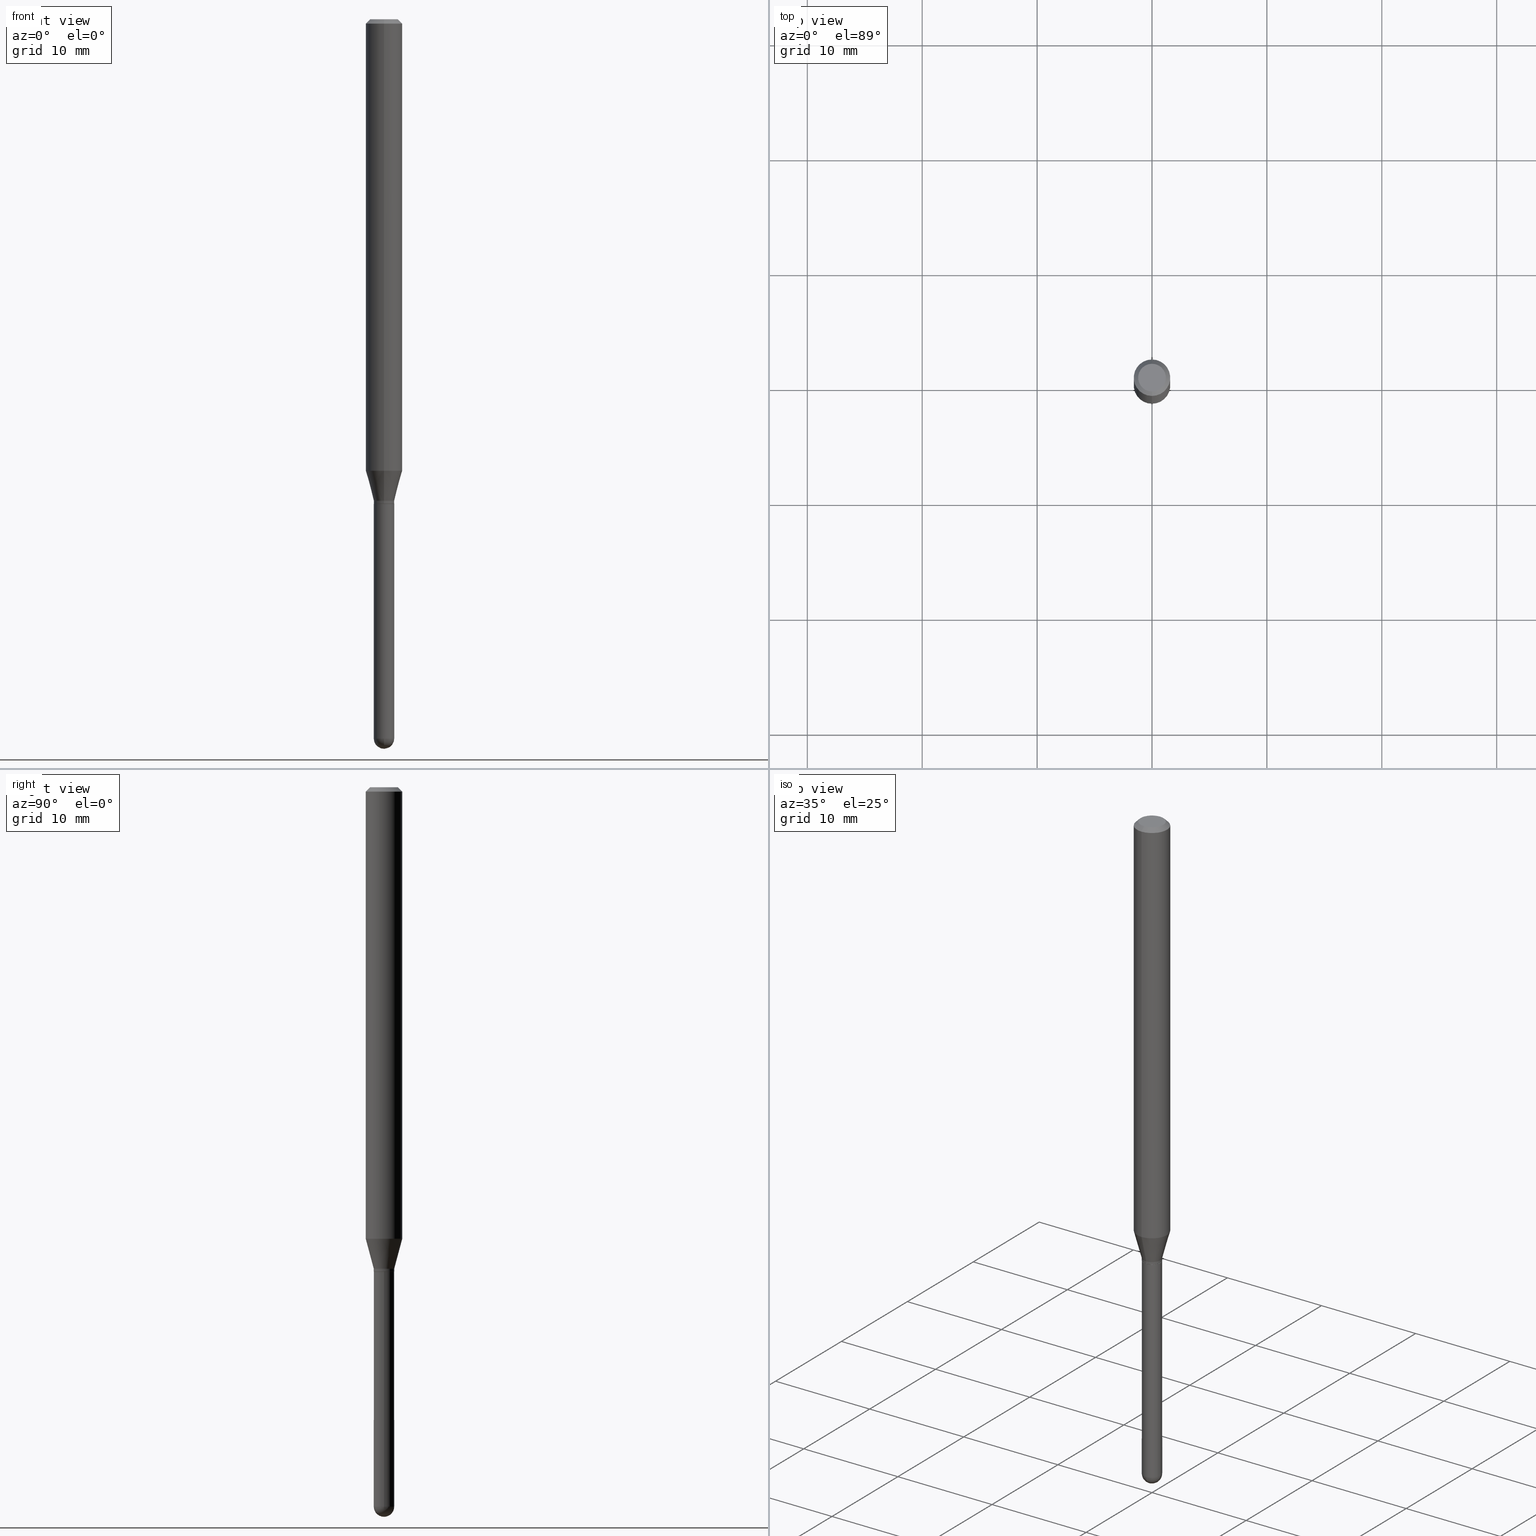
[diagram: canonical four-view strip — front | top / right | iso, engineering-drawing reading convention]
A machine part, canonical four-view strip (front | top / right | iso — engineering-drawing reading convention). The complete STEP part file that produces these views, byte-faithful:
ISO-10303-21;
HEADER;
FILE_DESCRIPTION (( 'STEP AP203' ),
    '1' );
FILE_NAME ('02788.STEP',
    '2024-03-07T21:32:30',
    ( '' ),
    ( '' ),
    'SwSTEP 2.0',
    'SolidWorks 2023',
    '' );
FILE_SCHEMA (( 'CONFIG_CONTROL_DESIGN' ));
ENDSEC;

DATA;
#1 = VECTOR ( 'NONE', #497, 39.37007874015748143 ) ;
#2 = CC_DESIGN_PERSON_AND_ORGANIZATION_ASSIGNMENT ( #27, #495, ( #453 ) ) ;
#3 = EDGE_CURVE ( 'NONE', #107, #251, #336, .T. ) ;
#4 = VERTEX_POINT ( 'NONE', #54 ) ;
#5 = CARTESIAN_POINT ( 'NONE',  ( 3.783948471057598170E-29, -5.402742038218876257E-15, -1.547368602791855619 ) ) ;
#6 = ORIENTED_EDGE ( 'NONE', *, *, #233, .F. ) ;
#7 = APPROVAL_ROLE ( '' ) ;
#8 = ORIENTED_EDGE ( 'NONE', *, *, #281, .T. ) ;
#9 = AXIS2_PLACEMENT_3D ( 'NONE', #379, #141, #174 ) ;
#10 = AXIS2_PLACEMENT_3D ( 'NONE', #306, #389, #198 ) ;
#11 = VERTEX_POINT ( 'NONE', #439 ) ;
#12 = DIRECTION ( 'NONE',  ( -6.982962677686265922E-15, -1.000000000000000000, 3.491567573796523366E-15 ) ) ;
#13 = FACE_OUTER_BOUND ( 'NONE', #120, .T. ) ;
#14 = SPHERICAL_SURFACE ( 'NONE', #315, 0.03499999999999974659 ) ;
#15 = DIRECTION ( 'NONE',  ( -2.445408588639041950E-29, 3.491567573796523366E-15, 1.000000000000000000 ) ) ;
#16 = DIRECTION ( 'NONE',  ( 6.982962677686265922E-15, 1.000000000000000000, 0.000000000000000000 ) ) ;
#17 = ADVANCED_FACE ( 'NONE', ( #88 ), #203, .T. ) ;
#18 = DIRECTION ( 'NONE',  ( -6.982962677686265922E-15, -1.000000000000000000, 3.491567573796522971E-15 ) ) ;
#19 = AXIS2_PLACEMENT_3D ( 'NONE', #273, #474, #188 ) ;
#20 = LOCAL_TIME ( 16, 32, 30.00000000000000000, #372 ) ;
#21 = LINE ( 'NONE', #366, #102 ) ;
#22 = CARTESIAN_POINT ( 'NONE',  ( 4.059378257140809872E-29, -5.796002172502230420E-15, -1.660000000000000364 ) ) ;
#23 = DIRECTION ( 'NONE',  ( 1.000000000000000000, -6.982962677686276966E-15, 0.000000000000000000 ) ) ;
#24 = EDGE_LOOP ( 'NONE', ( #301, #69 ) ) ;
#25 = APPROVAL_ROLE ( '' ) ;
#26 = EDGE_LOOP ( 'NONE', ( #146, #30, #195, #37 ) ) ;
#27 = PERSON_AND_ORGANIZATION ( #276, #290 ) ;
#28 = VECTOR ( 'NONE', #150, 39.37007874015748143 ) ;
#29 = APPROVAL_PERSON_ORGANIZATION ( #427, #274, #455 ) ;
#30 = ORIENTED_EDGE ( 'NONE', *, *, #3, .F. ) ;
#31 = CARTESIAN_POINT ( 'NONE',  ( 4.059478218267327378E-29, -5.795859022479622985E-15, -1.660000000000000364 ) ) ;
#32 = DIRECTION ( 'NONE',  ( -4.937700262164674260E-15, -0.7071067811865632269, 0.7071067811865319186 ) ) ;
#33 = DIRECTION ( 'NONE',  ( 1.000000000000000000, -6.982962677686276966E-15, 0.000000000000000000 ) ) ;
#34 = DIRECTION ( 'NONE',  ( -6.982962677686265922E-15, -1.000000000000000000, 3.483106191921935554E-15 ) ) ;
#35 = AXIS2_PLACEMENT_3D ( 'NONE', #312, #208, #356 ) ;
#36 = DIRECTION ( 'NONE',  ( -2.445468806185136597E-29, 3.491481338843145583E-15, 1.000000000000000000 ) ) ;
#37 = ORIENTED_EDGE ( 'NONE', *, *, #295, .T. ) ;
#38 = EDGE_CURVE ( 'NONE', #105, #400, #440, .T. ) ;
#39 = VERTEX_POINT ( 'NONE', #499 ) ;
#40 = CIRCLE ( 'NONE', #424, 0.06250000000000000000 ) ;
#41 = AXIS2_PLACEMENT_3D ( 'NONE', #357, #449, #89 ) ;
#42 = VERTEX_POINT ( 'NONE', #134 ) ;
#43 = CARTESIAN_POINT ( 'NONE',  ( 2.486899575160741866E-16, 0.03499999999999400813, -1.659500000000000419 ) ) ;
#44 = EDGE_CURVE ( 'NONE', #393, #193, #245, .T. ) ;
#45 = VERTEX_POINT ( 'NONE', #488 ) ;
#46 = VERTEX_POINT ( 'NONE', #491 ) ;
#47 = LINE ( 'NONE', #317, #136 ) ;
#48 = EDGE_LOOP ( 'NONE', ( #201, #229, #415, #343 ) ) ;
#49 =( NAMED_UNIT ( * ) PLANE_ANGLE_UNIT ( ) SI_UNIT ( $, .RADIAN. ) );
#50 = CARTESIAN_POINT ( 'NONE',  ( 0.000000000000000000, 0.000000000000000000, 0.000000000000000000 ) ) ;
#51 = CARTESIAN_POINT ( 'NONE',  ( -2.444036937189784522E-16, -0.03500000000000568628, -1.649999999999999689 ) ) ;
#52 = VECTOR ( 'NONE', #462, 39.37007874015748143 ) ;
#53 = PLANE ( 'NONE',  #510 ) ;
#54 = CARTESIAN_POINT ( 'NONE',  ( 4.440892098501000871E-16, 0.06249999999999455991, -1.547368602791856063 ) ) ;
#55 = APPLICATION_PROTOCOL_DEFINITION ( 'international standard', 'config_control_design', 1994, #448 ) ;
#56 = ADVANCED_FACE ( 'NONE', ( #370 ), #156, .T. ) ;
#57 = ORIENTED_EDGE ( 'NONE', *, *, #492, .F. ) ;
#58 = DATE_AND_TIME ( #90, #375 ) ;
#59 = CARTESIAN_POINT ( 'NONE',  ( 3.668112882958643079E-31, -5.237351360694899581E-17, -0.01500000000000032904 ) ) ;
#60 = CARTESIAN_POINT ( 'NONE',  ( 0.000000000000000000, 0.000000000000000000, 0.000000000000000000 ) ) ;
#61 = EDGE_CURVE ( 'NONE', #400, #187, #394, .T. ) ;
#62 = DIRECTION ( 'NONE',  ( -2.445408588639041950E-29, 3.491567573796523366E-15, 1.000000000000000000 ) ) ;
#63 = DIRECTION ( 'NONE',  ( -2.445408588639041950E-29, 3.491567573796523366E-15, 1.000000000000000000 ) ) ;
#64 = DIRECTION ( 'NONE',  ( -2.445408588639041950E-29, 3.491567573796523366E-15, 1.000000000000000000 ) ) ;
#65 = VECTOR ( 'NONE', #334, 39.37007874015748143 ) ;
#66 = DIRECTION ( 'NONE',  ( 1.000000000000000000, -6.982962677686265922E-15, 4.876176775795936353E-29 ) ) ;
#67 = DIRECTION ( 'NONE',  ( -6.982962677686265133E-15, -1.000000000000000000, 3.491567573796522971E-15 ) ) ;
#68 = DIRECTION ( 'NONE',  ( -2.445408588639041950E-29, 3.491567573796523366E-15, 1.000000000000000000 ) ) ;
#69 = ORIENTED_EDGE ( 'NONE', *, *, #417, .F. ) ;
#70 = CYLINDRICAL_SURFACE ( 'NONE', #262, 0.03500000000000000333 ) ;
#71 = FACE_OUTER_BOUND ( 'NONE', #26, .T. ) ;
#72 = CIRCLE ( 'NONE', #180, 0.03500000000000000333 ) ;
#73 = VECTOR ( 'NONE', #413, 39.37007874015748143 ) ;
#74 = FACE_OUTER_BOUND ( 'NONE', #423, .T. ) ;
#75 = CARTESIAN_POINT ( 'NONE',  ( -4.364351673553916201E-16, -0.06250000000000000000, 2.182229733622826857E-16 ) ) ;
#76 = DIRECTION ( 'NONE',  ( 6.982962677686265922E-15, 1.000000000000000000, -3.491567573796523366E-15 ) ) ;
#77 = ORIENTED_EDGE ( 'NONE', *, *, #457, .F. ) ;
#78 = DIRECTION ( 'NONE',  ( 2.445408588639041389E-29, -3.491567573796523366E-15, -1.000000000000000000 ) ) ;
#79 = CYLINDRICAL_SURFACE ( 'NONE', #391, 0.03499999999999992700 ) ;
#80 = AXIS2_PLACEMENT_3D ( 'NONE', #5, #194, #478 ) ;
#81 = LINE ( 'NONE', #480, #200 ) ;
#82 = ORIENTED_EDGE ( 'NONE', *, *, #380, .F. ) ;
#83 = ORIENTED_EDGE ( 'NONE', *, *, #473, .F. ) ;
#84 = DIRECTION ( 'NONE',  ( -6.982962677686266711E-15, -1.000000000000000000, 3.491567573796523760E-15 ) ) ;
#85 = ADVANCED_FACE ( 'NONE', ( #236 ), #53, .F. ) ;
#86 = AXIS2_PLACEMENT_3D ( 'NONE', #319, #133, #291 ) ;
#87 = PLANE ( 'NONE',  #86 ) ;
#88 = FACE_OUTER_BOUND ( 'NONE', #346, .T. ) ;
#89 = DIRECTION ( 'NONE',  ( -6.982962677686265133E-15, -1.000000000000000000, 0.000000000000000000 ) ) ;
#90 = CALENDAR_DATE ( 2024, 7, 3 ) ;
#91 = EDGE_CURVE ( 'NONE', #451, #45, #500, .T. ) ;
#92 = CARTESIAN_POINT ( 'NONE',  ( 4.364351673553919652E-16, 0.06249999999999995143, -0.01500000000000054588 ) ) ;
#93 = APPROVAL_DATE_TIME ( #283, #274 ) ;
#94 = DIRECTION ( 'NONE',  ( -6.982962677686266711E-15, -1.000000000000000000, 0.000000000000000000 ) ) ;
#95 = DIRECTION ( 'NONE',  ( -2.445468806185136597E-29, 3.491481338843145583E-15, 1.000000000000000000 ) ) ;
#96 = CARTESIAN_POINT ( 'NONE',  ( 4.059378257140809872E-29, -5.796002172502230420E-15, -1.660000000000000364 ) ) ;
#97 = AXIS2_PLACEMENT_3D ( 'NONE', #464, #95, #293 ) ;
#98 = DIRECTION ( 'NONE',  ( -2.445468806185136877E-29, 3.491481338843145188E-15, 1.000000000000000000 ) ) ;
#99 = LINE ( 'NONE', #378, #289 ) ;
#100 = EDGE_LOOP ( 'NONE', ( #284, #275, #6, #123 ) ) ;
#101 = EDGE_CURVE ( 'NONE', #209, #39, #326, .T. ) ;
#102 = VECTOR ( 'NONE', #98, 39.37007874015748143 ) ;
#103 = CC_DESIGN_APPROVAL ( #167, ( #414 ) ) ;
#104 = FACE_OUTER_BOUND ( 'NONE', #435, .T. ) ;
#105 = VERTEX_POINT ( 'NONE', #469 ) ;
#106 = CARTESIAN_POINT ( 'NONE',  ( 4.034924171254418404E-29, -5.761086496764261128E-15, -1.649999999999999689 ) ) ;
#107 = VERTEX_POINT ( 'NONE', #267 ) ;
#108 = EDGE_CURVE ( 'NONE', #400, #105, #135, .T. ) ;
#109 = EDGE_LOOP ( 'NONE', ( #392, #387 ) ) ;
#110 = PERSON_AND_ORGANIZATION ( #276, #290 ) ;
#111 = AXIS2_PLACEMENT_3D ( 'NONE', #221, #297, #34 ) ;
#112 = APPROVAL_PERSON_ORGANIZATION ( #214, #167, #7 ) ;
#113 = CARTESIAN_POINT ( 'NONE',  ( 3.316907271900976096E-16, 0.04749999999999999362, -3.299208855312719678E-16 ) ) ;
#114 = PERSON_AND_ORGANIZATION_ROLE ( 'creator' ) ;
#115 = ORIENTED_EDGE ( 'NONE', *, *, #196, .F. ) ;
#116 = ORIENTED_EDGE ( 'NONE', *, *, #225, .T. ) ;
#117 = AXIS2_PLACEMENT_3D ( 'NONE', #409, #15, #325 ) ;
#118 = AXIS2_PLACEMENT_3D ( 'NONE', #213, #494, #84 ) ;
#119 = AXIS2_PLACEMENT_3D ( 'NONE', #252, #64, #67 ) ;
#120 = EDGE_LOOP ( 'NONE', ( #300, #485, #487, #77 ) ) ;
#121 = ORIENTED_EDGE ( 'NONE', *, *, #298, .T. ) ;
#122 = ADVANCED_FACE ( 'NONE', ( #74 ), #433, .F. ) ;
#123 = ORIENTED_EDGE ( 'NONE', *, *, #101, .F. ) ;
#124 = CONICAL_SURFACE ( 'NONE', #190, 0.03450000000000000289, 0.7853981633974739252 ) ;
#125 = DIRECTION ( 'NONE',  ( -2.445408588639042230E-29, 3.491567573796523366E-15, 1.000000000000000000 ) ) ;
#126 = CARTESIAN_POINT ( 'NONE',  ( 2.469136006766751179E-16, 0.03449999999999420197, -1.660000000000000364 ) ) ;
#127 = LINE ( 'NONE', #92, #73 ) ;
#128 = PERSON_AND_ORGANIZATION ( #276, #290 ) ;
#129 = DIRECTION ( 'NONE',  ( -2.445468806185136597E-29, 3.491481338843145583E-15, 1.000000000000000000 ) ) ;
#130 = DIRECTION ( 'NONE',  ( -2.445408588639041950E-29, 3.491567573796523366E-15, 1.000000000000000000 ) ) ;
#131 = APPROVAL_STATUS ( 'not_yet_approved' ) ;
#132 = CARTESIAN_POINT ( 'NONE',  ( 0.03500000000000000333, -2.444036937190193250E-16, 1.706661871528577808E-30 ) ) ;
#133 = DIRECTION ( 'NONE',  ( 2.438088387897960049E-29, -3.491481338843145188E-15, -1.000000000000000000 ) ) ;
#134 = CARTESIAN_POINT ( 'NONE',  ( -4.364351673553912750E-16, -0.06250000000000005551, -0.01500000000000011047 ) ) ;
#135 = CIRCLE ( 'NONE', #19, 0.03499999999999992700 ) ;
#136 = VECTOR ( 'NONE', #490, 39.37007874015748143 ) ;
#137 = CYLINDRICAL_SURFACE ( 'NONE', #119, 0.03499999999999992700 ) ;
#138 = EDGE_CURVE ( 'NONE', #507, #209, #72, .T. ) ;
#139 = EDGE_CURVE ( 'NONE', #4, #151, #179, .T. ) ;
#140 = DIRECTION ( 'NONE',  ( -6.982962677686266711E-15, -1.000000000000000000, 3.491567573796523760E-15 ) ) ;
#141 = DIRECTION ( 'NONE',  ( -2.445468806185136597E-29, 3.491481338843145583E-15, 1.000000000000000000 ) ) ;
#142 = CIRCLE ( 'NONE', #222, 0.04749999999999999362 ) ;
#143 = DIRECTION ( 'NONE',  ( 5.024295867788190974E-15, 0.7071067811865681119, 0.7071067811865270336 ) ) ;
#144 = AXIS2_PLACEMENT_3D ( 'NONE', #206, #493, #164 ) ;
#145 = CC_DESIGN_SECURITY_CLASSIFICATION ( #471, ( #453 ) ) ;
#146 = ORIENTED_EDGE ( 'NONE', *, *, #458, .F. ) ;
#147 = MANIFOLD_SOLID_BREP ( 'Body-Move/Copy2[2]', #373 ) ;
#148 = EDGE_LOOP ( 'NONE', ( #83, #279, #340, #303 ) ) ;
#149 = EDGE_CURVE ( 'NONE', #46, #151, #231, .T. ) ;
#150 = DIRECTION ( 'NONE',  ( -1.807323732225332900E-15, -0.2588190451025185745, 0.9659258262890689783 ) ) ;
#151 = VERTEX_POINT ( 'NONE', #322 ) ;
#152 = AXIS2_PLACEMENT_3D ( 'NONE', #420, #338, #257 ) ;
#153 = VECTOR ( 'NONE', #259, 39.37007874015748143 ) ;
#154 = CARTESIAN_POINT ( 'NONE',  ( 6.025087525234234064E-29, -8.610787764045369491E-15, -2.464999999999999858 ) ) ;
#155 = DIRECTION ( 'NONE',  ( -1.000000000000000000, 6.982962677686265922E-15, -4.883557194083112901E-29 ) ) ;
#156 = CYLINDRICAL_SURFACE ( 'NONE', #342, 0.06250000000000000000 ) ;
#157 = CALENDAR_DATE ( 2024, 7, 3 ) ;
#158 = FACE_OUTER_BOUND ( 'NONE', #100, .T. ) ;
#159 = CIRCLE ( 'NONE', #111, 0.06250000000000000000 ) ;
#160 = DIRECTION ( 'NONE',  ( -2.445468806185136597E-29, 3.491481338843145583E-15, 1.000000000000000000 ) ) ;
#161 = SHAPE_DEFINITION_REPRESENTATION ( #172, #186 ) ;
#162 =( CONVERSION_BASED_UNIT ( 'INCH', #402 ) LENGTH_UNIT ( ) NAMED_UNIT ( #398 ) );
#163 = DATE_TIME_ROLE ( 'classification_date' ) ;
#164 = DIRECTION ( 'NONE',  ( -6.982962677686265922E-15, -1.000000000000000000, 3.483106191921935554E-15 ) ) ;
#165 = CARTESIAN_POINT ( 'NONE',  ( -2.486899575159738534E-16, -0.03500000000000848266, -2.464999999999999858 ) ) ;
#166 = ORIENTED_EDGE ( 'NONE', *, *, #457, .T. ) ;
#167 = APPROVAL ( #307, 'UNSPECIFIED' ) ;
#168 = SPHERICAL_SURFACE ( 'NONE', #223, 0.03499999999999974659 ) ;
#169 = CIRCLE ( 'NONE', #470, 0.03499999999999992006 ) ;
#170 = PERSON_AND_ORGANIZATION_ROLE ( 'classification_officer' ) ;
#171 = ADVANCED_FACE ( 'NONE', ( #496 ), #137, .T. ) ;
#172 = PRODUCT_DEFINITION_SHAPE ( 'NONE', 'NONE',  #414 ) ;
#173 = ADVANCED_FACE ( 'NONE', ( #332 ), #479, .T. ) ;
#174 = DIRECTION ( 'NONE',  ( 1.000000000000000000, -6.982962677686248567E-15, 0.000000000000000000 ) ) ;
#175 = CARTESIAN_POINT ( 'NONE',  ( 3.463895836830877531E-16, 0.03499999999999416078, -1.649999999999999689 ) ) ;
#176 = DIRECTION ( 'NONE',  ( -6.982962677686265133E-15, -1.000000000000000000, 0.000000000000000000 ) ) ;
#177 = EDGE_CURVE ( 'NONE', #11, #226, #271, .T. ) ;
#178 = ORIENTED_EDGE ( 'NONE', *, *, #61, .F. ) ;
#179 = CIRCLE ( 'NONE', #80, 0.06250000000000000000 ) ;
#180 = AXIS2_PLACEMENT_3D ( 'NONE', #299, #390, #191 ) ;
#181 = LOCAL_TIME ( 16, 32, 30.00000000000000000, #367 ) ;
#182 = LINE ( 'NONE', #335, #52 ) ;
#183 = EDGE_LOOP ( 'NONE', ( #178, #234, #166, #57 ) ) ;
#184 = CC_DESIGN_PERSON_AND_ORGANIZATION_ASSIGNMENT ( #110, #114, ( #414 ) ) ;
#185 = ORIENTED_EDGE ( 'NONE', *, *, #3, .T. ) ;
#186 = ADVANCED_BREP_SHAPE_REPRESENTATION ( '02788', ( #324, #147, #263 ), #385 ) ;
#187 = VERTEX_POINT ( 'NONE', #175 ) ;
#188 = DIRECTION ( 'NONE',  ( -6.982962677686265133E-15, -1.000000000000000000, 0.000000000000000000 ) ) ;
#189 = EDGE_CURVE ( 'NONE', #151, #4, #40, .T. ) ;
#190 = AXIS2_PLACEMENT_3D ( 'NONE', #249, #63, #176 ) ;
#191 = DIRECTION ( 'NONE',  ( 1.000000000000000000, -6.982962677686248567E-15, 0.000000000000000000 ) ) ;
#192 = PRODUCT_RELATED_PRODUCT_CATEGORY ( 'detail', '', ( #304 ) ) ;
#193 = VERTEX_POINT ( 'NONE', #126 ) ;
#194 = DIRECTION ( 'NONE',  ( -2.445408588639041950E-29, 3.491567573796523366E-15, 1.000000000000000000 ) ) ;
#195 = ORIENTED_EDGE ( 'NONE', *, *, #465, .T. ) ;
#196 = EDGE_CURVE ( 'NONE', #45, #507, #199, .T. ) ;
#197 = ORIENTED_EDGE ( 'NONE', *, *, #351, .F. ) ;
#198 = DIRECTION ( 'NONE',  ( -6.982962677686265133E-15, -1.000000000000000000, 0.000000000000000000 ) ) ;
#199 = CIRCLE ( 'NONE', #35, 0.03500000000000000333 ) ;
#200 = VECTOR ( 'NONE', #272, 39.37007874015748143 ) ;
#201 = ORIENTED_EDGE ( 'NONE', *, *, #281, .F. ) ;
#202 = FACE_OUTER_BOUND ( 'NONE', #368, .T. ) ;
#203 = CYLINDRICAL_SURFACE ( 'NONE', #406, 0.06250000000000000000 ) ;
#204 = CARTESIAN_POINT ( 'NONE',  ( 6.028080607246362204E-29, -8.606501500248354960E-15, -2.464999999999999858 ) ) ;
#205 = FACE_OUTER_BOUND ( 'NONE', #401, .T. ) ;
#206 = CARTESIAN_POINT ( 'NONE',  ( 3.668112882958643079E-31, -5.237351360694899581E-17, -0.01500000000000032904 ) ) ;
#207 = CIRCLE ( 'NONE', #442, 0.03500000000000000333 ) ;
#208 = DIRECTION ( 'NONE',  ( -2.445468806185136597E-29, 3.491481338843145583E-15, 1.000000000000000000 ) ) ;
#209 = VERTEX_POINT ( 'NONE', #165 ) ;
#210 = PERSON_AND_ORGANIZATION ( #276, #290 ) ;
#211 = DIRECTION ( 'NONE',  ( -2.445408588639041950E-29, 3.491567573796523366E-15, 1.000000000000000000 ) ) ;
#212 = DIRECTION ( 'NONE',  ( -6.982962677686266711E-15, -1.000000000000000000, 0.000000000000000000 ) ) ;
#213 = CARTESIAN_POINT ( 'NONE',  ( 8.024433474854594807E-45, -1.145732940051650306E-30, -3.281428515518742632E-16 ) ) ;
#214 = PERSON_AND_ORGANIZATION ( #276, #290 ) ;
#215 = ADVANCED_FACE ( 'NONE', ( #363 ), #87, .F. ) ;
#216 = ORIENTED_EDGE ( 'NONE', *, *, #225, .F. ) ;
#217 = CONICAL_SURFACE ( 'NONE', #395, 0.06250000000000000000, 0.7853981633974483900 ) ;
#218 = CARTESIAN_POINT ( 'NONE',  ( 4.034924171254418404E-29, -5.761086496764261128E-15, -1.649999999999999689 ) ) ;
#219 = FACE_OUTER_BOUND ( 'NONE', #258, .T. ) ;
#220 = ADVANCED_FACE ( 'NONE', ( #202 ), #14, .T. ) ;
#221 = CARTESIAN_POINT ( 'NONE',  ( 3.668112882958643079E-31, -5.237351360694899581E-17, -0.01500000000000032904 ) ) ;
#222 = AXIS2_PLACEMENT_3D ( 'NONE', #467, #504, #140 ) ;
#223 = AXIS2_PLACEMENT_3D ( 'NONE', #292, #355, #16 ) ;
#224 = LINE ( 'NONE', #386, #153 ) ;
#225 = EDGE_CURVE ( 'NONE', #193, #400, #352, .T. ) ;
#226 = VERTEX_POINT ( 'NONE', #503 ) ;
#227 = ADVANCED_FACE ( 'NONE', ( #219 ), #70, .T. ) ;
#228 = ORIENTED_EDGE ( 'NONE', *, *, #362, .T. ) ;
#229 = ORIENTED_EDGE ( 'NONE', *, *, #139, .T. ) ;
#230 = LOCAL_TIME ( 16, 32, 30.00000000000000000, #477 ) ;
#231 = LINE ( 'NONE', #51, #28 ) ;
#232 = ORIENTED_EDGE ( 'NONE', *, *, #351, .T. ) ;
#233 = EDGE_CURVE ( 'NONE', #39, #45, #337, .T. ) ;
#234 = ORIENTED_EDGE ( 'NONE', *, *, #108, .T. ) ;
#235 = APPLICATION_CONTEXT ( 'configuration controlled 3d designs of mechanical parts and assemblies' ) ;
#236 = FACE_OUTER_BOUND ( 'NONE', #24, .T. ) ;
#237 = VECTOR ( 'NONE', #143, 39.37007874015748143 ) ;
#238 = APPROVAL_PERSON_ORGANIZATION ( #210, #468, #25 ) ;
#239 = ORIENTED_EDGE ( 'NONE', *, *, #196, .T. ) ;
#240 = APPROVAL_DATE_TIME ( #58, #468 ) ;
#241 = DATE_TIME_ROLE ( 'creation_date' ) ;
#242 = ORIENTED_EDGE ( 'NONE', *, *, #288, .T. ) ;
#243 = ORIENTED_EDGE ( 'NONE', *, *, #189, .F. ) ;
#244 = CARTESIAN_POINT ( 'NONE',  ( 6.112175474456776861E-29, -8.730846479006371419E-15, -2.499999999999999556 ) ) ;
#245 = CIRCLE ( 'NONE', #405, 0.03450000000000000289 ) ;
#246 = AXIS2_PLACEMENT_3D ( 'NONE', #31, #254, #33 ) ;
#247 = CARTESIAN_POINT ( 'NONE',  ( 2.486899575160344971E-16, 0.03499999999999992700, -1.222048650828780525E-16 ) ) ;
#248 = DATE_AND_TIME ( #277, #436 ) ;
#249 = CARTESIAN_POINT ( 'NONE',  ( 4.059378257140809872E-29, -5.796002172502230420E-15, -1.660000000000000364 ) ) ;
#250 = ADVANCED_FACE ( 'NONE', ( #330 ), #506, .T. ) ;
#251 = VERTEX_POINT ( 'NONE', #408 ) ;
#252 = CARTESIAN_POINT ( 'NONE',  ( 0.000000000000000000, 0.000000000000000000, 0.000000000000000000 ) ) ;
#253 = CIRCLE ( 'NONE', #10, 0.03450000000000000289 ) ;
#254 = DIRECTION ( 'NONE',  ( -2.445468806185136597E-29, 3.491481338843145583E-15, 1.000000000000000000 ) ) ;
#255 = AXIS2_PLACEMENT_3D ( 'NONE', #419, #68, #278 ) ;
#256 = DIRECTION ( 'NONE',  ( 6.982962677686265922E-15, 1.000000000000000000, -3.483106191921935554E-15 ) ) ;
#257 = DIRECTION ( 'NONE',  ( -7.105427357601000281E-15, -1.000000000000000000, 0.000000000000000000 ) ) ;
#258 = EDGE_LOOP ( 'NONE', ( #399, #475, #296, #228, #459 ) ) ;
#259 = DIRECTION ( 'NONE',  ( 1.839019923739603076E-15, 0.2588190451025253469, 0.9659258262890670910 ) ) ;
#260 = EDGE_LOOP ( 'NONE', ( #239, #511, #305, #411, #421 ) ) ;
#261 = DESIGN_CONTEXT ( 'detailed design', #235, 'design' ) ;
#262 = AXIS2_PLACEMENT_3D ( 'NONE', #418, #36, #66 ) ;
#263 = AXIS2_PLACEMENT_3D ( 'NONE', #484, #403, #280 ) ;
#264 = CC_DESIGN_PERSON_AND_ORGANIZATION_ASSIGNMENT ( #369, #383, ( #304 ) ) ;
#265 = ORIENTED_EDGE ( 'NONE', *, *, #44, .T. ) ;
#266 = ADVANCED_FACE ( 'NONE', ( #456 ), #358, .T. ) ;
#267 = CARTESIAN_POINT ( 'NONE',  ( 3.840629472727447874E-16, 0.04749999999999999362, -4.939923113072091241E-16 ) ) ;
#268 = ORIENTED_EDGE ( 'NONE', *, *, #108, .F. ) ;
#269 = ORIENTED_EDGE ( 'NONE', *, *, #38, .F. ) ;
#270 = EDGE_CURVE ( 'NONE', #393, #105, #99, .T. ) ;
#271 = CIRCLE ( 'NONE', #246, 0.03500000000000000333 ) ;
#272 = DIRECTION ( 'NONE',  ( -2.445408588639042230E-29, 3.491567573796523366E-15, 1.000000000000000000 ) ) ;
#273 = CARTESIAN_POINT ( 'NONE',  ( 4.058155552846491195E-29, -5.794256388715332389E-15, -1.659500000000000419 ) ) ;
#274 = APPROVAL ( #430, 'UNSPECIFIED' ) ;
#275 = ORIENTED_EDGE ( 'NONE', *, *, #91, .T. ) ;
#276 = PERSON ( 'UNSPECIFIED', 'UNSPECIFIED', 'UNSPECIFIED', ('UNSPECIFIED'), ('UNSPECIFIED'), ('UNSPECIFIED') ) ;
#277 = CALENDAR_DATE ( 2024, 7, 3 ) ;
#278 = DIRECTION ( 'NONE',  ( -6.982962677686266711E-15, -1.000000000000000000, 0.000000000000000000 ) ) ;
#279 = ORIENTED_EDGE ( 'NONE', *, *, #492, .T. ) ;
#280 = DIRECTION ( 'NONE',  ( 1.000000000000000000, 0.000000000000000000, 0.000000000000000000 ) ) ;
#281 = EDGE_CURVE ( 'NONE', #4, #429, #182, .T. ) ;
#282 = DIRECTION ( 'NONE',  ( 6.982962677686265922E-15, 1.000000000000000000, 0.000000000000000000 ) ) ;
#283 = DATE_AND_TIME ( #157, #20 ) ;
#284 = ORIENTED_EDGE ( 'NONE', *, *, #288, .F. ) ;
#285 = CARTESIAN_POINT ( 'NONE',  ( 0.000000000000000000, 0.000000000000000000, 0.000000000000000000 ) ) ;
#286 = CARTESIAN_POINT ( 'NONE',  ( 6.025087525234234064E-29, -8.610787764045369491E-15, -2.464999999999999858 ) ) ;
#287 = DIRECTION ( 'NONE',  ( -6.982962677686265133E-15, -1.000000000000000000, 0.000000000000000000 ) ) ;
#288 = EDGE_CURVE ( 'NONE', #451, #209, #407, .T. ) ;
#289 = VECTOR ( 'NONE', #32, 39.37007874015748143 ) ;
#290 = ORGANIZATION ( 'UNSPECIFIED', 'UNSPECIFIED', '' ) ;
#291 = DIRECTION ( 'NONE',  ( -1.000000000000000000, 6.982962677686265922E-15, -4.876176775795935793E-29 ) ) ;
#292 = CARTESIAN_POINT ( 'NONE',  ( 6.025087525234234064E-29, -8.610787764045369491E-15, -2.464999999999999858 ) ) ;
#293 = DIRECTION ( 'NONE',  ( 1.000000000000000000, -6.982962677686265922E-15, 4.876176775795936353E-29 ) ) ;
#294 = AXIS2_PLACEMENT_3D ( 'NONE', #106, #460, #376 ) ;
#295 = EDGE_CURVE ( 'NONE', #429, #42, #159, .T. ) ;
#296 = ORIENTED_EDGE ( 'NONE', *, *, #101, .T. ) ;
#297 = DIRECTION ( 'NONE',  ( -2.445408588639041950E-29, 3.491567573796523366E-15, 1.000000000000000000 ) ) ;
#298 = EDGE_CURVE ( 'NONE', #251, #107, #142, .T. ) ;
#299 = CARTESIAN_POINT ( 'NONE',  ( 6.028080607246362204E-29, -8.606501500248354960E-15, -2.464999999999999858 ) ) ;
#300 = ORIENTED_EDGE ( 'NONE', *, *, #38, .T. ) ;
#301 = ORIENTED_EDGE ( 'NONE', *, *, #44, .F. ) ;
#302 = ADVANCED_FACE ( 'NONE', ( #104 ), #217, .T. ) ;
#303 = ORIENTED_EDGE ( 'NONE', *, *, #139, .F. ) ;
#304 = PRODUCT ( '02788', '02788', '', ( #445 ) ) ;
#305 = ORIENTED_EDGE ( 'NONE', *, *, #353, .F. ) ;
#306 = CARTESIAN_POINT ( 'NONE',  ( 4.059378257140809872E-29, -5.796002172502230420E-15, -1.660000000000000364 ) ) ;
#307 = APPROVAL_STATUS ( 'not_yet_approved' ) ;
#308 = ORIENTED_EDGE ( 'NONE', *, *, #473, .T. ) ;
#309 = CARTESIAN_POINT ( 'NONE',  ( 4.440892098501006787E-16, 0.06249999999999995143, -0.01500000000000054588 ) ) ;
#310 = DIRECTION ( 'NONE',  ( 6.982962677686265133E-15, 1.000000000000000000, 0.000000000000000000 ) ) ;
#311 = DATE_AND_TIME ( #371, #181 ) ;
#312 = CARTESIAN_POINT ( 'NONE',  ( 6.028080607246362204E-29, -8.606501500248354960E-15, -2.464999999999999858 ) ) ;
#313 = DIRECTION ( 'NONE',  ( -6.982962677686265922E-15, -1.000000000000000000, 3.491567573796522971E-15 ) ) ;
#314 = CARTESIAN_POINT ( 'NONE',  ( -0.03500000000000000333, -6.952490303847953292E-15, -2.464999999999999858 ) ) ;
#315 = AXIS2_PLACEMENT_3D ( 'NONE', #286, #155, #282 ) ;
#316 = AXIS2_PLACEMENT_3D ( 'NONE', #461, #333, #256 ) ;
#317 = CARTESIAN_POINT ( 'NONE',  ( -4.287811248607203282E-16, -0.06250000000000005551, -0.01500000000000011047 ) ) ;
#318 = CARTESIAN_POINT ( 'NONE',  ( 4.034924171254418404E-29, -5.761086496764261128E-15, -1.649999999999999689 ) ) ;
#319 = CARTESIAN_POINT ( 'NONE',  ( 2.444036937190599020E-16, 0.03499999999999420242, -1.660000000000000364 ) ) ;
#320 = EDGE_CURVE ( 'NONE', #46, #187, #169, .T. ) ;
#321 = DIRECTION ( 'NONE',  ( 1.000000000000000000, -6.982962677686248567E-15, 0.000000000000000000 ) ) ;
#322 = CARTESIAN_POINT ( 'NONE',  ( -4.364351673553540013E-16, -0.06250000000000544009, -1.547368602791855396 ) ) ;
#323 = LINE ( 'NONE', #132, #1 ) ;
#324 = MANIFOLD_SOLID_BREP ( 'Body-Move/Copy2[1]', #509 ) ;
#325 = DIRECTION ( 'NONE',  ( -6.982962677686265133E-15, -1.000000000000000000, 0.000000000000000000 ) ) ;
#326 = CIRCLE ( 'NONE', #416, 0.03500000000000000333 ) ;
#327 = CC_DESIGN_APPROVAL ( #274, ( #453 ) ) ;
#328 = SECURITY_CLASSIFICATION_LEVEL ( 'unclassified' ) ;
#329 = CARTESIAN_POINT ( 'NONE',  ( 2.451372438372751124E-16, 0.03449999999999420197, -1.660000000000000364 ) ) ;
#330 = FACE_OUTER_BOUND ( 'NONE', #260, .T. ) ;
#331 = ORIENTED_EDGE ( 'NONE', *, *, #189, .T. ) ;
#332 = FACE_OUTER_BOUND ( 'NONE', #432, .T. ) ;
#333 = DIRECTION ( 'NONE',  ( 2.445408588639041950E-29, -3.491567573796523366E-15, -1.000000000000000000 ) ) ;
#334 = DIRECTION ( 'NONE',  ( -2.445408588639042230E-29, 3.491567573796523366E-15, 1.000000000000000000 ) ) ;
#335 = CARTESIAN_POINT ( 'NONE',  ( 4.440892098500625669E-16, 0.06250000000000000000, -2.182229733622826857E-16 ) ) ;
#336 = CIRCLE ( 'NONE', #118, 0.04749999999999999362 ) ;
#337 = CIRCLE ( 'NONE', #9, 0.03500000000000000333 ) ;
#338 = DIRECTION ( 'NONE',  ( -1.000000000000000000, 7.105427357601001070E-15, -4.926315508542082329E-29 ) ) ;
#339 = UNCERTAINTY_MEASURE_WITH_UNIT (LENGTH_MEASURE( 1.000000000000000082E-05 ), #162, 'distance_accuracy_value', 'NONE');
#340 = ORIENTED_EDGE ( 'NONE', *, *, #149, .T. ) ;
#341 = CC_DESIGN_DATE_AND_TIME_ASSIGNMENT ( #248, #163, ( #471 ) ) ;
#342 = AXIS2_PLACEMENT_3D ( 'NONE', #60, #62, #313 ) ;
#343 = ORIENTED_EDGE ( 'NONE', *, *, #295, .F. ) ;
#344 = ORIENTED_EDGE ( 'NONE', *, *, #91, .F. ) ;
#345 = ORIENTED_EDGE ( 'NONE', *, *, #270, .F. ) ;
#346 = EDGE_LOOP ( 'NONE', ( #331, #8, #197, #82 ) ) ;
#347 = EDGE_CURVE ( 'NONE', #507, #11, #21, .T. ) ;
#348 =( NAMED_UNIT ( * ) SI_UNIT ( $, .STERADIAN. ) SOLID_ANGLE_UNIT ( ) );
#349 = AXIS2_PLACEMENT_3D ( 'NONE', #154, #447, #310 ) ;
#350 = DIRECTION ( 'NONE',  ( -2.445408588639041389E-29, 3.491567573796523366E-15, 1.000000000000000000 ) ) ;
#351 = EDGE_CURVE ( 'NONE', #42, #429, #374, .T. ) ;
#352 = LINE ( 'NONE', #329, #237 ) ;
#353 = EDGE_CURVE ( 'NONE', #226, #11, #207, .T. ) ;
#354 = PERSON_AND_ORGANIZATION ( #276, #290 ) ;
#355 = DIRECTION ( 'NONE',  ( -1.000000000000000000, 6.982962677686265922E-15, -4.883557194083112901E-29 ) ) ;
#356 = DIRECTION ( 'NONE',  ( 1.000000000000000000, -6.982962677686248567E-15, 0.000000000000000000 ) ) ;
#357 = CARTESIAN_POINT ( 'NONE',  ( 4.059378257140809872E-29, -5.796002172502230420E-15, -1.660000000000000364 ) ) ;
#358 = CONICAL_SURFACE ( 'NONE', #452, 0.03499999999999992006, 0.2617993877991506846 ) ;
#359 = DIRECTION ( 'NONE',  ( 2.445408588639041950E-29, -3.491567573796523366E-15, -1.000000000000000000 ) ) ;
#360 = DIRECTION ( 'NONE',  ( -2.445408588639041950E-29, 3.491567573796523366E-15, 1.000000000000000000 ) ) ;
#361 = CC_DESIGN_APPROVAL ( #468, ( #471 ) ) ;
#362 = EDGE_CURVE ( 'NONE', #39, #226, #323, .T. ) ;
#363 = FACE_OUTER_BOUND ( 'NONE', #109, .T. ) ;
#364 = DIRECTION ( 'NONE',  ( -2.445408588639041950E-29, 3.491567573796523366E-15, 1.000000000000000000 ) ) ;
#365 = ORIENTED_EDGE ( 'NONE', *, *, #458, .T. ) ;
#366 = CARTESIAN_POINT ( 'NONE',  ( -0.03500000000000000333, 2.486899575160350887E-16, -1.721627281589217108E-30 ) ) ;
#367 = COORDINATED_UNIVERSAL_TIME_OFFSET ( 5, 0, .BEHIND. ) ;
#368 = EDGE_LOOP ( 'NONE', ( #344, #242, #381, #115 ) ) ;
#369 = PERSON_AND_ORGANIZATION ( #276, #290 ) ;
#370 = FACE_OUTER_BOUND ( 'NONE', #48, .T. ) ;
#371 = CALENDAR_DATE ( 2024, 7, 3 ) ;
#372 = COORDINATED_UNIVERSAL_TIME_OFFSET ( 5, 0, .BEHIND. ) ;
#373 = CLOSED_SHELL ( 'NONE', ( #384, #434, #302, #17, #173, #266, #56, #483, #122, #85, #377, #171 ) ) ;
#374 = CIRCLE ( 'NONE', #144, 0.06250000000000000000 ) ;
#375 = LOCAL_TIME ( 16, 32, 30.00000000000000000, #441 ) ;
#376 = DIRECTION ( 'NONE',  ( -6.982962677686266711E-15, -1.000000000000000000, 0.000000000000000000 ) ) ;
#377 = ADVANCED_FACE ( 'NONE', ( #454 ), #124, .T. ) ;
#378 = CARTESIAN_POINT ( 'NONE',  ( -2.409122123801355929E-16, -0.03450000000000579686, -1.660000000000000364 ) ) ;
#379 = CARTESIAN_POINT ( 'NONE',  ( 6.028080607246362204E-29, -8.606501500248354960E-15, -2.464999999999999858 ) ) ;
#380 = EDGE_CURVE ( 'NONE', #151, #42, #426, .T. ) ;
#381 = ORIENTED_EDGE ( 'NONE', *, *, #138, .F. ) ;
#382 = ORIENTED_EDGE ( 'NONE', *, *, #320, .T. ) ;
#383 = PERSON_AND_ORGANIZATION_ROLE ( 'design_owner' ) ;
#384 = ADVANCED_FACE ( 'NONE', ( #13 ), #79, .T. ) ;
#385 =( GEOMETRIC_REPRESENTATION_CONTEXT ( 3 ) GLOBAL_UNCERTAINTY_ASSIGNED_CONTEXT ( ( #339 ) ) GLOBAL_UNIT_ASSIGNED_CONTEXT ( ( #162, #49, #348 ) ) REPRESENTATION_CONTEXT ( 'NONE', 'WORKASPACE' ) );
#386 = CARTESIAN_POINT ( 'NONE',  ( 2.486899575160748276E-16, 0.03499999999999416078, -1.649999999999999689 ) ) ;
#387 = ORIENTED_EDGE ( 'NONE', *, *, #177, .T. ) ;
#388 = CC_DESIGN_DATE_AND_TIME_ASSIGNMENT ( #311, #241, ( #414 ) ) ;
#389 = DIRECTION ( 'NONE',  ( -2.445408588639041950E-29, 3.491567573796523366E-15, 1.000000000000000000 ) ) ;
#390 = DIRECTION ( 'NONE',  ( -2.445468806185136597E-29, 3.491481338843145583E-15, 1.000000000000000000 ) ) ;
#391 = AXIS2_PLACEMENT_3D ( 'NONE', #50, #476, #396 ) ;
#392 = ORIENTED_EDGE ( 'NONE', *, *, #353, .T. ) ;
#393 = VERTEX_POINT ( 'NONE', #431 ) ;
#394 = LINE ( 'NONE', #247, #481 ) ;
#395 = AXIS2_PLACEMENT_3D ( 'NONE', #59, #359, #450 ) ;
#396 = DIRECTION ( 'NONE',  ( -6.982962677686265133E-15, -1.000000000000000000, 3.491567573796522971E-15 ) ) ;
#397 = CONICAL_SURFACE ( 'NONE', #41, 0.03450000000000000289, 0.7853981633974739252 ) ;
#398 = DIMENSIONAL_EXPONENTS ( 1.000000000000000000, 0.000000000000000000, 0.000000000000000000, 0.000000000000000000, 0.000000000000000000, 0.000000000000000000, 0.000000000000000000 ) ;
#399 = ORIENTED_EDGE ( 'NONE', *, *, #347, .F. ) ;
#400 = VERTEX_POINT ( 'NONE', #43 ) ;
#401 = EDGE_LOOP ( 'NONE', ( #265, #116, #269, #345 ) ) ;
#402 = LENGTH_MEASURE_WITH_UNIT ( LENGTH_MEASURE( 0.02539999999999999897 ), #489 );
#403 = DIRECTION ( 'NONE',  ( 0.000000000000000000, 0.000000000000000000, 1.000000000000000000 ) ) ;
#404 = CALENDAR_DATE ( 2024, 7, 3 ) ;
#405 = AXIS2_PLACEMENT_3D ( 'NONE', #96, #364, #287 ) ;
#406 = AXIS2_PLACEMENT_3D ( 'NONE', #285, #130, #18 ) ;
#407 = CIRCLE ( 'NONE', #152, 0.03499999999999974659 ) ;
#408 = CARTESIAN_POINT ( 'NONE',  ( -3.773273898774340269E-16, -0.04749999999999999362, -1.622933917965394024E-16 ) ) ;
#409 = CARTESIAN_POINT ( 'NONE',  ( 4.058155552846491195E-29, -5.794256388715332389E-15, -1.659500000000000419 ) ) ;
#410 = CARTESIAN_POINT ( 'NONE',  ( 4.059478218267327378E-29, -5.795859022479622985E-15, -1.660000000000000364 ) ) ;
#411 = ORIENTED_EDGE ( 'NONE', *, *, #362, .F. ) ;
#412 = PERSON_AND_ORGANIZATION_ROLE ( 'creator' ) ;
#413 = DIRECTION ( 'NONE',  ( 4.937700262164548042E-15, 0.7071067811865451302, -0.7071067811865499042 ) ) ;
#414 = PRODUCT_DEFINITION ( 'UNKNOWN', '', #453, #261 ) ;
#415 = ORIENTED_EDGE ( 'NONE', *, *, #380, .T. ) ;
#416 = AXIS2_PLACEMENT_3D ( 'NONE', #204, #160, #321 ) ;
#417 = EDGE_CURVE ( 'NONE', #193, #393, #253, .T. ) ;
#418 = CARTESIAN_POINT ( 'NONE',  ( 0.000000000000000000, 0.000000000000000000, 0.000000000000000000 ) ) ;
#419 = CARTESIAN_POINT ( 'NONE',  ( 4.034924171254418404E-29, -5.761086496764261128E-15, -1.649999999999999689 ) ) ;
#420 = CARTESIAN_POINT ( 'NONE',  ( 6.025087525234234064E-29, -8.610787764045369491E-15, -2.464999999999999858 ) ) ;
#421 = ORIENTED_EDGE ( 'NONE', *, *, #233, .T. ) ;
#422 = ORIENTED_EDGE ( 'NONE', *, *, #298, .F. ) ;
#423 = EDGE_LOOP ( 'NONE', ( #185, #121 ) ) ;
#424 = AXIS2_PLACEMENT_3D ( 'NONE', #508, #438, #446 ) ;
#425 = CONICAL_SURFACE ( 'NONE', #316, 0.06250000000000000000, 0.7853981633974483900 ) ;
#426 = LINE ( 'NONE', #75, #65 ) ;
#427 = PERSON_AND_ORGANIZATION ( #276, #290 ) ;
#428 = EDGE_LOOP ( 'NONE', ( #216, #482, #472, #268 ) ) ;
#429 = VERTEX_POINT ( 'NONE', #309 ) ;
#430 = APPROVAL_STATUS ( 'not_yet_approved' ) ;
#431 = CARTESIAN_POINT ( 'NONE',  ( -2.409122123801355929E-16, -0.03450000000000579686, -1.660000000000000364 ) ) ;
#432 = EDGE_LOOP ( 'NONE', ( #382, #308, #243, #437 ) ) ;
#433 = PLANE ( 'NONE',  #463 ) ;
#434 = ADVANCED_FACE ( 'NONE', ( #205 ), #397, .T. ) ;
#435 = EDGE_LOOP ( 'NONE', ( #422, #365, #232, #466 ) ) ;
#436 = LOCAL_TIME ( 16, 32, 30.00000000000000000, #502 ) ;
#437 = ORIENTED_EDGE ( 'NONE', *, *, #149, .F. ) ;
#438 = DIRECTION ( 'NONE',  ( -2.445408588639041950E-29, 3.491567573796523366E-15, 1.000000000000000000 ) ) ;
#439 = CARTESIAN_POINT ( 'NONE',  ( -0.03500000000000000333, -6.952490303847953292E-15, -1.660000000000000364 ) ) ;
#440 = CIRCLE ( 'NONE', #117, 0.03499999999999992700 ) ;
#441 = COORDINATED_UNIVERSAL_TIME_OFFSET ( 5, 0, .BEHIND. ) ;
#442 = AXIS2_PLACEMENT_3D ( 'NONE', #410, #129, #23 ) ;
#443 = CC_DESIGN_PERSON_AND_ORGANIZATION_ASSIGNMENT ( #354, #412, ( #453 ) ) ;
#444 = DATE_AND_TIME ( #404, #230 ) ;
#445 = MECHANICAL_CONTEXT ( 'NONE', #448, 'mechanical' ) ;
#446 = DIRECTION ( 'NONE',  ( -6.982962677686265922E-15, -1.000000000000000000, 4.370956789862821150E-15 ) ) ;
#447 = DIRECTION ( 'NONE',  ( 1.000000000000000000, -6.982962677686265922E-15, 4.883557194083112340E-29 ) ) ;
#448 = APPLICATION_CONTEXT ( 'configuration controlled 3d designs of mechanical parts and assemblies' ) ;
#449 = DIRECTION ( 'NONE',  ( -2.445408588639041950E-29, 3.491567573796523366E-15, 1.000000000000000000 ) ) ;
#450 = DIRECTION ( 'NONE',  ( 6.982962677686265922E-15, 1.000000000000000000, -3.483106191921935554E-15 ) ) ;
#451 = VERTEX_POINT ( 'NONE', #244 ) ;
#452 = AXIS2_PLACEMENT_3D ( 'NONE', #218, #360, #212 ) ;
#453 = PRODUCT_DEFINITION_FORMATION_WITH_SPECIFIED_SOURCE ( 'ANY', '', #304, .NOT_KNOWN. ) ;
#454 = FACE_OUTER_BOUND ( 'NONE', #428, .T. ) ;
#455 = APPROVAL_ROLE ( '' ) ;
#456 = FACE_OUTER_BOUND ( 'NONE', #148, .T. ) ;
#457 = EDGE_CURVE ( 'NONE', #105, #46, #81, .T. ) ;
#458 = EDGE_CURVE ( 'NONE', #251, #42, #47, .T. ) ;
#459 = ORIENTED_EDGE ( 'NONE', *, *, #177, .F. ) ;
#460 = DIRECTION ( 'NONE',  ( -2.445408588639041950E-29, 3.491567573796523366E-15, 1.000000000000000000 ) ) ;
#461 = CARTESIAN_POINT ( 'NONE',  ( 3.668112882958643079E-31, -5.237351360694899581E-17, -0.01500000000000032904 ) ) ;
#462 = DIRECTION ( 'NONE',  ( -2.445408588639042230E-29, 3.491567573796523366E-15, 1.000000000000000000 ) ) ;
#463 = AXIS2_PLACEMENT_3D ( 'NONE', #113, #78, #76 ) ;
#464 = CARTESIAN_POINT ( 'NONE',  ( 0.000000000000000000, 0.000000000000000000, 0.000000000000000000 ) ) ;
#465 = EDGE_CURVE ( 'NONE', #107, #429, #127, .T. ) ;
#466 = ORIENTED_EDGE ( 'NONE', *, *, #465, .F. ) ;
#467 = CARTESIAN_POINT ( 'NONE',  ( 8.024433474854594807E-45, -1.145732940051650306E-30, -3.281428515518742632E-16 ) ) ;
#468 = APPROVAL ( #131, 'UNSPECIFIED' ) ;
#469 = CARTESIAN_POINT ( 'NONE',  ( -2.444036937189790438E-16, -0.03500000000000583894, -1.659500000000000419 ) ) ;
#470 = AXIS2_PLACEMENT_3D ( 'NONE', #318, #211, #94 ) ;
#471 = SECURITY_CLASSIFICATION ( '', '', #328 ) ;
#472 = ORIENTED_EDGE ( 'NONE', *, *, #270, .T. ) ;
#473 = EDGE_CURVE ( 'NONE', #187, #4, #224, .T. ) ;
#474 = DIRECTION ( 'NONE',  ( -2.445408588639041950E-29, 3.491567573796523366E-15, 1.000000000000000000 ) ) ;
#475 = ORIENTED_EDGE ( 'NONE', *, *, #138, .T. ) ;
#476 = DIRECTION ( 'NONE',  ( -2.445408588639041950E-29, 3.491567573796523366E-15, 1.000000000000000000 ) ) ;
#477 = COORDINATED_UNIVERSAL_TIME_OFFSET ( 5, 0, .BEHIND. ) ;
#478 = DIRECTION ( 'NONE',  ( -6.982962677686265922E-15, -1.000000000000000000, 4.370956789862821150E-15 ) ) ;
#479 = CONICAL_SURFACE ( 'NONE', #294, 0.03499999999999992006, 0.2617993877991506846 ) ;
#480 = CARTESIAN_POINT ( 'NONE',  ( -2.444036937190187827E-16, -0.03499999999999992700, 1.222048650828780525E-16 ) ) ;
#481 = VECTOR ( 'NONE', #125, 39.37007874015748143 ) ;
#482 = ORIENTED_EDGE ( 'NONE', *, *, #417, .T. ) ;
#483 = ADVANCED_FACE ( 'NONE', ( #71 ), #425, .T. ) ;
#484 = CARTESIAN_POINT ( 'NONE',  ( 0.000000000000000000, 0.000000000000000000, 0.000000000000000000 ) ) ;
#485 = ORIENTED_EDGE ( 'NONE', *, *, #61, .T. ) ;
#486 = CC_DESIGN_PERSON_AND_ORGANIZATION_ASSIGNMENT ( #128, #170, ( #471 ) ) ;
#487 = ORIENTED_EDGE ( 'NONE', *, *, #320, .F. ) ;
#488 = CARTESIAN_POINT ( 'NONE',  ( 2.444036937190786868E-16, 0.03499999999999126726, -2.464999999999999858 ) ) ;
#489 =( LENGTH_UNIT ( ) NAMED_UNIT ( * ) SI_UNIT ( $, .METRE. ) );
#490 = DIRECTION ( 'NONE',  ( -4.851104656540964275E-15, -0.7071067811865500152, -0.7071067811865450192 ) ) ;
#491 = CARTESIAN_POINT ( 'NONE',  ( -2.444036937189784522E-16, -0.03500000000000568628, -1.649999999999999689 ) ) ;
#492 = EDGE_CURVE ( 'NONE', #187, #46, #501, .T. ) ;
#493 = DIRECTION ( 'NONE',  ( -2.445408588639041950E-29, 3.491567573796523366E-15, 1.000000000000000000 ) ) ;
#494 = DIRECTION ( 'NONE',  ( -2.445408588639041950E-29, 3.491567573796523366E-15, 1.000000000000000000 ) ) ;
#495 = PERSON_AND_ORGANIZATION_ROLE ( 'design_supplier' ) ;
#496 = FACE_OUTER_BOUND ( 'NONE', #183, .T. ) ;
#497 = DIRECTION ( 'NONE',  ( -2.445468806185136877E-29, 3.491481338843145188E-15, 1.000000000000000000 ) ) ;
#498 = APPLICATION_PROTOCOL_DEFINITION ( 'international standard', 'config_control_design', 1994, #235 ) ;
#499 = CARTESIAN_POINT ( 'NONE',  ( 0.03500000000000000333, -7.445583955083008544E-15, -2.464999999999999858 ) ) ;
#500 = CIRCLE ( 'NONE', #349, 0.03499999999999974659 ) ;
#501 = CIRCLE ( 'NONE', #255, 0.03499999999999992006 ) ;
#502 = COORDINATED_UNIVERSAL_TIME_OFFSET ( 5, 0, .BEHIND. ) ;
#503 = CARTESIAN_POINT ( 'NONE',  ( 0.03500000000000000333, -6.040262716198642951E-15, -1.660000000000000364 ) ) ;
#504 = DIRECTION ( 'NONE',  ( -2.445408588639041950E-29, 3.491567573796523366E-15, 1.000000000000000000 ) ) ;
#505 = ADVANCED_FACE ( 'NONE', ( #158 ), #168, .T. ) ;
#506 = CYLINDRICAL_SURFACE ( 'NONE', #97, 0.03500000000000000333 ) ;
#507 = VERTEX_POINT ( 'NONE', #314 ) ;
#508 = CARTESIAN_POINT ( 'NONE',  ( 3.783948471057598170E-29, -5.402742038218876257E-15, -1.547368602791855619 ) ) ;
#509 = CLOSED_SHELL ( 'NONE', ( #250, #220, #215, #505, #227 ) ) ;
#510 = AXIS2_PLACEMENT_3D ( 'NONE', #22, #350, #12 ) ;
#511 = ORIENTED_EDGE ( 'NONE', *, *, #347, .T. ) ;
#512 = APPROVAL_DATE_TIME ( #444, #167 ) ;
ENDSEC;
END-ISO-10303-21;
